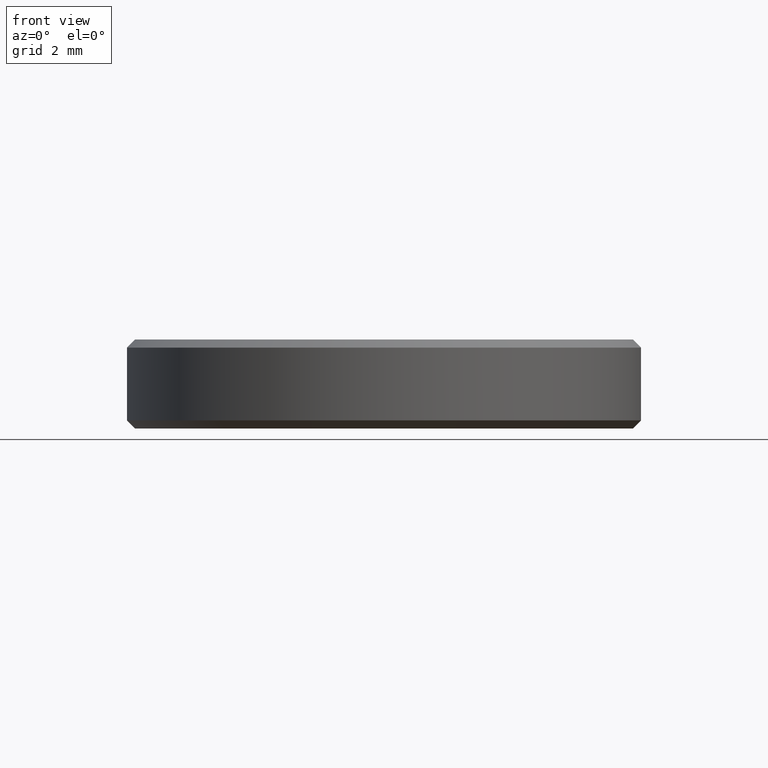
[diagram: clean part render]
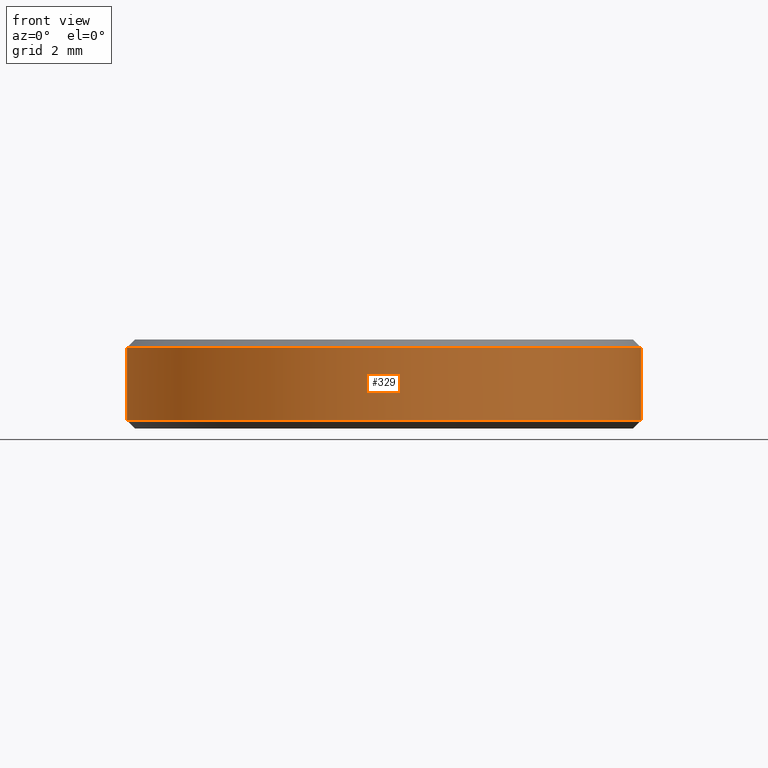
[diagram: same view with one face highlighted and labeled with its STEP entity id]
A machine part, front view. The second image highlights one B-rep face of the part: STEP entity #329.
In plain terms, the highlighted cylindrical surface (partial cylindrical patch) has radius 6.35 mm, axis along (-0, -0, -1).
Its self-contained STEP definition (entity closure, byte-faithful):
#12 = DIRECTION ( 'NONE',  ( -0.000000000000000000, -0.000000000000000000, 1.000000000000000000 ) ) ;
#18 = LINE ( 'NONE', #859, #709 ) ;
#37 = EDGE_CURVE ( 'NONE', #369, #899, #816, .T. ) ;
#47 = ORIENTED_EDGE ( 'NONE', *, *, #608, .T. ) ;
#54 = ORIENTED_EDGE ( 'NONE', *, *, #359, .F. ) ;
#68 = CARTESIAN_POINT ( 'NONE',  ( 0.000000000000000000, 0.000000000000000000, 2.200000000000000178 ) ) ;
#78 = VECTOR ( 'NONE', #254, 1000.000000000000000 ) ;
#90 = AXIS2_PLACEMENT_3D ( 'NONE', #366, #12, #798 ) ;
#135 = CIRCLE ( 'NONE', #803, 6.349999999999999645 ) ;
#151 = DIRECTION ( 'NONE',  ( -0.000000000000000000, -0.000000000000000000, -1.000000000000000000 ) ) ;
#167 = DIRECTION ( 'NONE',  ( 0.000000000000000000, 0.000000000000000000, -1.000000000000000000 ) ) ;
#190 = EDGE_LOOP ( 'NONE', ( #54, #645, #47, #446 ) ) ;
#194 = CYLINDRICAL_SURFACE ( 'NONE', #692, 6.349999999999999645 ) ;
#203 = LINE ( 'NONE', #841, #78 ) ;
#254 = DIRECTION ( 'NONE',  ( -0.000000000000000000, -0.000000000000000000, -1.000000000000000000 ) ) ;
#295 = EDGE_CURVE ( 'NONE', #751, #886, #135, .T. ) ;
#329 = ADVANCED_FACE ( 'NONE', ( #772 ), #194, .T. ) ;
#359 = EDGE_CURVE ( 'NONE', #751, #899, #203, .T. ) ;
#366 = CARTESIAN_POINT ( 'NONE',  ( 0.000000000000000000, 0.000000000000000000, 0.1999999999999987899 ) ) ;
#369 = VERTEX_POINT ( 'NONE', #762 ) ;
#377 = DIRECTION ( 'NONE',  ( 1.000000000000000000, 0.000000000000000000, 0.000000000000000000 ) ) ;
#446 = ORIENTED_EDGE ( 'NONE', *, *, #37, .T. ) ;
#524 = CARTESIAN_POINT ( 'NONE',  ( 6.349999999999999645, 7.776507174585692163E-16, 2.000000000000000444 ) ) ;
#536 = DIRECTION ( 'NONE',  ( -1.000000000000000000, 0.000000000000000000, 0.000000000000000000 ) ) ;
#592 = CARTESIAN_POINT ( 'NONE',  ( -6.349999999999999645, 0.000000000000000000, 2.000000000000000444 ) ) ;
#608 = EDGE_CURVE ( 'NONE', #886, #369, #18, .T. ) ;
#612 = DIRECTION ( 'NONE',  ( -0.000000000000000000, -0.000000000000000000, -1.000000000000000000 ) ) ;
#645 = ORIENTED_EDGE ( 'NONE', *, *, #295, .T. ) ;
#692 = AXIS2_PLACEMENT_3D ( 'NONE', #68, #612, #536 ) ;
#709 = VECTOR ( 'NONE', #151, 1000.000000000000000 ) ;
#736 = CARTESIAN_POINT ( 'NONE',  ( 0.000000000000000000, 0.000000000000000000, 2.000000000000000444 ) ) ;
#751 = VERTEX_POINT ( 'NONE', #524 ) ;
#762 = CARTESIAN_POINT ( 'NONE',  ( -6.349999999999999645, 0.000000000000000000, 0.1999999999999987899 ) ) ;
#763 = CARTESIAN_POINT ( 'NONE',  ( 6.349999999999999645, 7.776507174585692163E-16, 0.1999999999999987899 ) ) ;
#772 = FACE_OUTER_BOUND ( 'NONE', #190, .T. ) ;
#798 = DIRECTION ( 'NONE',  ( 1.000000000000000000, 0.000000000000000000, 0.000000000000000000 ) ) ;
#803 = AXIS2_PLACEMENT_3D ( 'NONE', #736, #167, #377 ) ;
#816 = CIRCLE ( 'NONE', #90, 6.349999999999999645 ) ;
#841 = CARTESIAN_POINT ( 'NONE',  ( 6.349999999999999645, 7.776507174585692163E-16, 2.200000000000000178 ) ) ;
#859 = CARTESIAN_POINT ( 'NONE',  ( -6.349999999999999645, 0.000000000000000000, 2.200000000000000178 ) ) ;
#886 = VERTEX_POINT ( 'NONE', #592 ) ;
#899 = VERTEX_POINT ( 'NONE', #763 ) ;